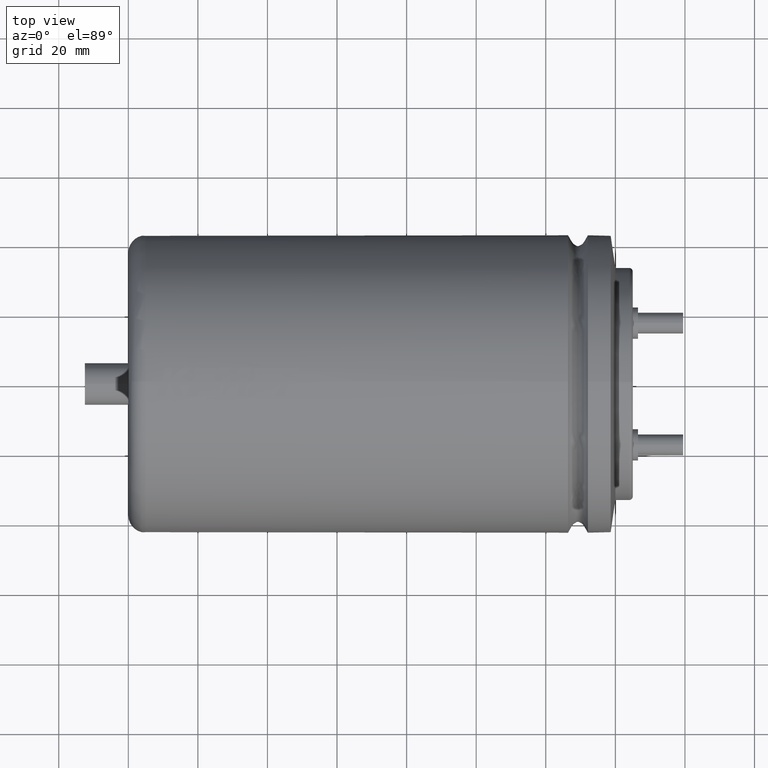
[diagram: clean part render]
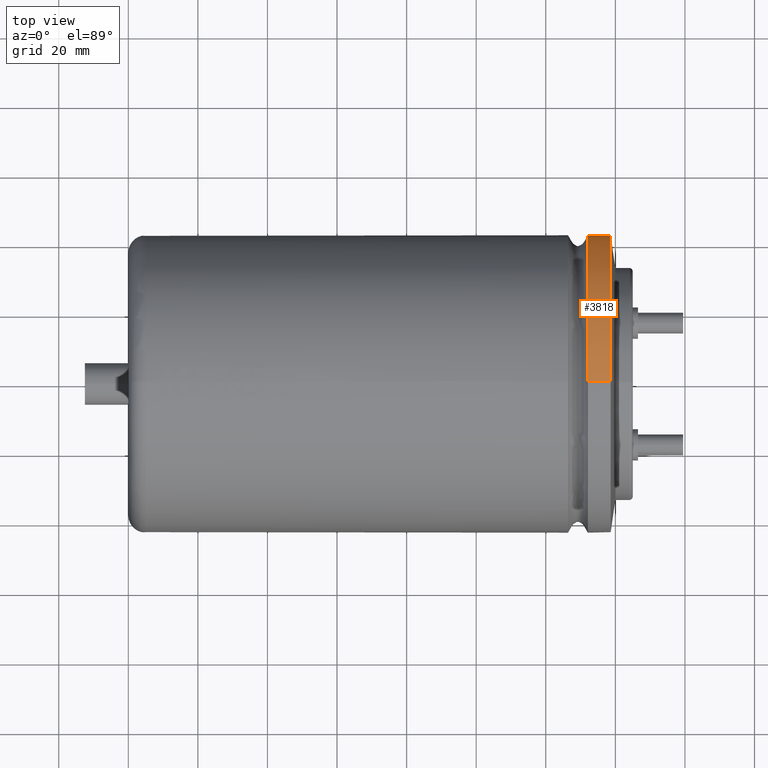
[diagram: same view with one face highlighted and labeled with its STEP entity id]
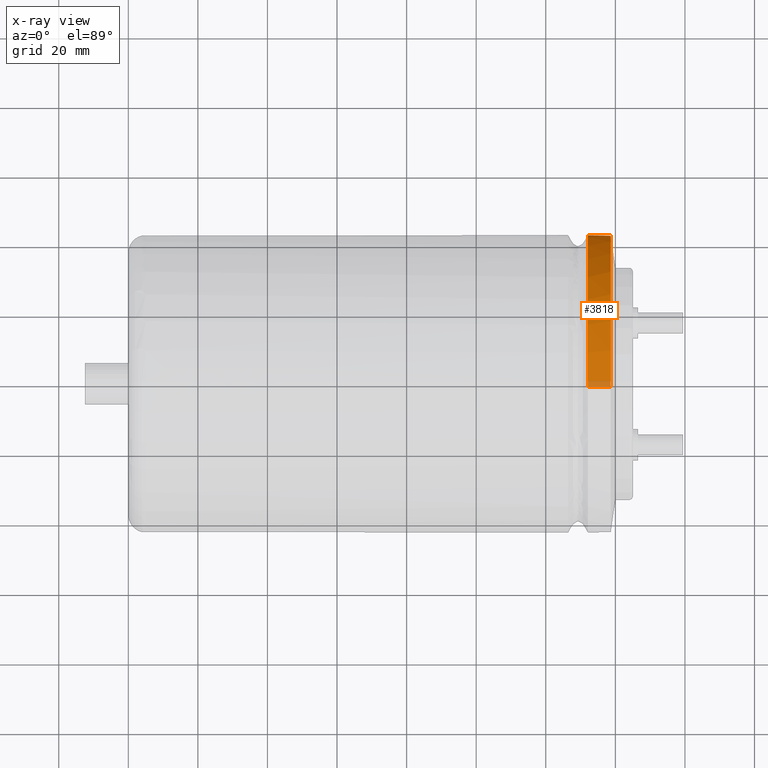
[diagram: x-ray of the same camera — body ghosted, the highlighted face saturated]
A machine part, top view. The second image highlights one B-rep face of the part: STEP entity #3818.
The next image is the same camera in x-ray: the body ghosted, the highlighted face saturated — about 4% of this face is hidden behind the body in this view.
In plain terms, the highlighted cylindrical surface (partial cylindrical patch) has radius 42.75 mm, axis along (-1, -0, -0).
Its self-contained STEP definition (entity closure, byte-faithful):
#362 = DIRECTION ( 'NONE',  ( -1.000000000000000000, -0.0000000000000000000, -0.0000000000000000000 ) ) ;
#374 = ORIENTED_EDGE ( 'NONE', *, *, #1681, .F. ) ;
#523 = AXIS2_PLACEMENT_3D ( 'NONE', #3654, #2122, #2676 ) ;
#570 = AXIS2_PLACEMENT_3D ( 'NONE', #2048, #2660, #3235 ) ;
#613 = LINE ( 'NONE', #2535, #3575 ) ;
#614 = VERTEX_POINT ( 'NONE', #3561 ) ;
#664 = CIRCLE ( 'NONE', #2763, 42.75000000000000000 ) ;
#680 = ORIENTED_EDGE ( 'NONE', *, *, #2555, .T. ) ;
#696 = CARTESIAN_POINT ( 'NONE',  ( 138.6560000000000100, 5.235365066354935500E-015, -42.75000000000000000 ) ) ;
#873 = EDGE_CURVE ( 'NONE', #1070, #1267, #2769, .T. ) ;
#972 = ORIENTED_EDGE ( 'NONE', *, *, #1516, .T. ) ;
#978 = ORIENTED_EDGE ( 'NONE', *, *, #3557, .T. ) ;
#1004 = FACE_OUTER_BOUND ( 'NONE', #2500, .T. ) ;
#1046 = CARTESIAN_POINT ( 'NONE',  ( 140.0000000000000000, 0.0000000000000000000, 42.75000000000000000 ) ) ;
#1070 = VERTEX_POINT ( 'NONE', #696 ) ;
#1267 = VERTEX_POINT ( 'NONE', #2650 ) ;
#1362 = DIRECTION ( 'NONE',  ( -1.000000000000000000, -0.0000000000000000000, -0.0000000000000000000 ) ) ;
#1516 = EDGE_CURVE ( 'NONE', #3878, #614, #3192, .T. ) ;
#1536 = CYLINDRICAL_SURFACE ( 'NONE', #570, 42.75000000000000000 ) ;
#1681 = EDGE_CURVE ( 'NONE', #1267, #1722, #2167, .T. ) ;
#1722 = VERTEX_POINT ( 'NONE', #2068 ) ;
#1775 = CARTESIAN_POINT ( 'NONE',  ( 132.1012000000000300, 0.0000000000000000000, 0.0000000000000000000 ) ) ;
#1900 = AXIS2_PLACEMENT_3D ( 'NONE', #2156, #3731, #2462 ) ;
#2048 = CARTESIAN_POINT ( 'NONE',  ( 140.0000000000000000, 0.0000000000000000000, 0.0000000000000000000 ) ) ;
#2068 = CARTESIAN_POINT ( 'NONE',  ( 132.1012000000000300, 0.0000000000000000000, 42.75000000000000000 ) ) ;
#2117 = CARTESIAN_POINT ( 'NONE',  ( 132.1012000000000300, 5.235365066354935500E-015, -42.75000000000000000 ) ) ;
#2122 = DIRECTION ( 'NONE',  ( 1.000000000000000000, -0.0000000000000000000, -0.0000000000000000000 ) ) ;
#2156 = CARTESIAN_POINT ( 'NONE',  ( 132.1012000000000300, 0.0000000000000000000, 0.0000000000000000000 ) ) ;
#2167 = LINE ( 'NONE', #1046, #3664 ) ;
#2462 = DIRECTION ( 'NONE',  ( 0.0000000000000000000, 0.0000000000000000000, -1.000000000000000000 ) ) ;
#2500 = EDGE_LOOP ( 'NONE', ( #3121, #680, #972, #978, #374 ) ) ;
#2535 = CARTESIAN_POINT ( 'NONE',  ( 140.0000000000000000, 5.235365066354935500E-015, -42.75000000000000000 ) ) ;
#2555 = EDGE_CURVE ( 'NONE', #1070, #3878, #613, .T. ) ;
#2650 = CARTESIAN_POINT ( 'NONE',  ( 138.6560000000000100, 0.0000000000000000000, 42.75000000000000000 ) ) ;
#2660 = DIRECTION ( 'NONE',  ( -1.000000000000000000, -0.0000000000000000000, -0.0000000000000000000 ) ) ;
#2676 = DIRECTION ( 'NONE',  ( 0.0000000000000000000, 0.0000000000000000000, -1.000000000000000000 ) ) ;
#2745 = DIRECTION ( 'NONE',  ( 0.0000000000000000000, 0.0000000000000000000, -1.000000000000000000 ) ) ;
#2763 = AXIS2_PLACEMENT_3D ( 'NONE', #1775, #3925, #2745 ) ;
#2769 = CIRCLE ( 'NONE', #523, 42.75000000000000000 ) ;
#3121 = ORIENTED_EDGE ( 'NONE', *, *, #873, .F. ) ;
#3192 = CIRCLE ( 'NONE', #1900, 42.75000000000000000 ) ;
#3235 = DIRECTION ( 'NONE',  ( 0.0000000000000000000, 0.0000000000000000000, 1.000000000000000000 ) ) ;
#3557 = EDGE_CURVE ( 'NONE', #614, #1722, #664, .T. ) ;
#3561 = CARTESIAN_POINT ( 'NONE',  ( 132.1012000000000300, 42.75000000000000000, 0.0000000000000000000 ) ) ;
#3575 = VECTOR ( 'NONE', #362, 1000.000000000000000 ) ;
#3654 = CARTESIAN_POINT ( 'NONE',  ( 138.6560000000000100, 0.0000000000000000000, 0.0000000000000000000 ) ) ;
#3664 = VECTOR ( 'NONE', #1362, 1000.000000000000000 ) ;
#3731 = DIRECTION ( 'NONE',  ( 1.000000000000000000, -0.0000000000000000000, -0.0000000000000000000 ) ) ;
#3818 = ADVANCED_FACE ( 'NONE', ( #1004 ), #1536, .T. ) ;
#3878 = VERTEX_POINT ( 'NONE', #2117 ) ;
#3925 = DIRECTION ( 'NONE',  ( 1.000000000000000000, -0.0000000000000000000, -0.0000000000000000000 ) ) ;